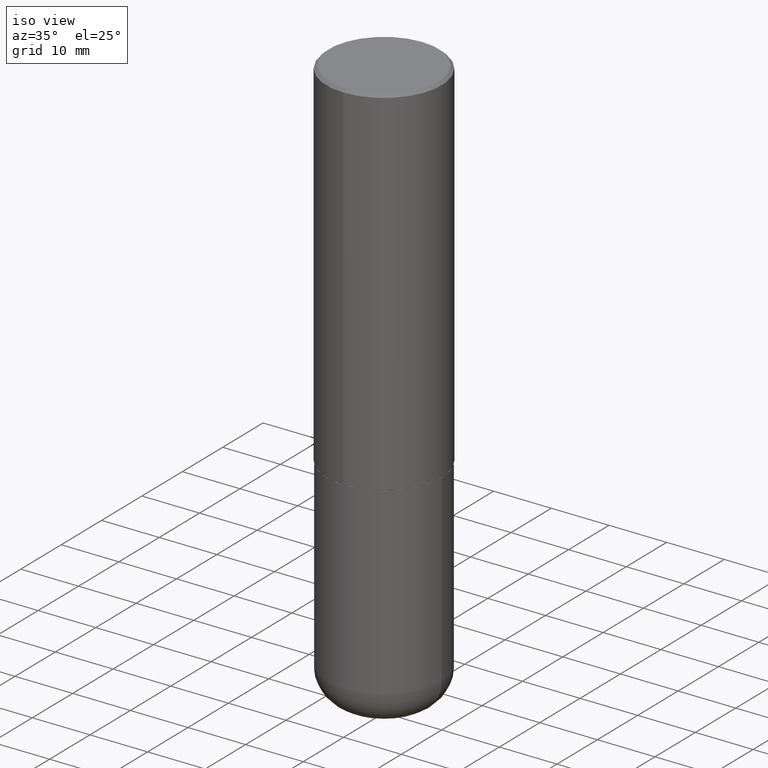
[diagram: clean part render]
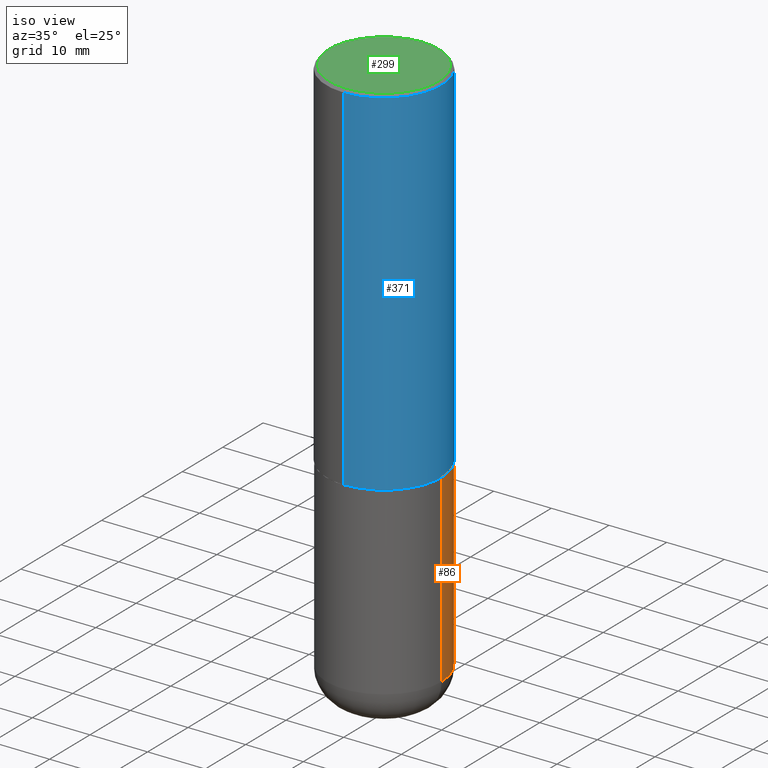
[diagram: same view with three faces highlighted in distinct colors, each labeled with its STEP entity id]
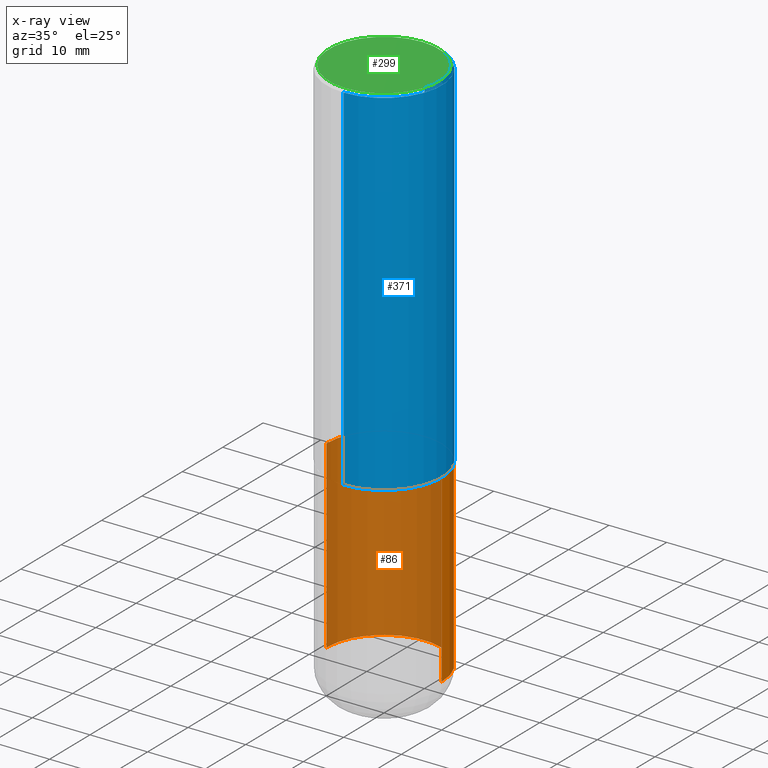
[diagram: x-ray of the same camera — body ghosted, the three highlighted faces saturated]
A machine part, iso view with three faces highlighted in distinct colors.
The next image is the same camera in x-ray (body ghosted, the three faces saturated) — at least one of them is partly hidden behind the body in this view.
Their STEP definitions:

[orange] entity #86 — the highlighted cylindrical surface (partial cylindrical patch) has radius 10 mm, axis along (-0, 0, 1).
#3 = DIRECTION ( 'NONE',  ( 1.000000000000000000, -6.982962677686269866E-15, 0.000000000000000000 ) ) ;
#14 = VECTOR ( 'NONE', #190, 39.37007874015748143 ) ;
#18 = CIRCLE ( 'NONE', #80, 0.3937000000000000499 ) ;
#19 = VECTOR ( 'NONE', #329, 39.37007874015748143 ) ;
#21 = ORIENTED_EDGE ( 'NONE', *, *, #23, .F. ) ;
#23 = EDGE_CURVE ( 'NONE', #380, #294, #18, .T. ) ;
#29 = DIRECTION ( 'NONE',  ( -2.445468806185136597E-29, 3.491481338843145583E-15, 1.000000000000000000 ) ) ;
#50 = CARTESIAN_POINT ( 'NONE',  ( 0.3937000000000000499, -1.127154920618731776E-14, -2.440900000000000070 ) ) ;
#52 = EDGE_LOOP ( 'NONE', ( #333, #336, #21, #409 ) ) ;
#59 = CARTESIAN_POINT ( 'NONE',  ( 0.3936999999999999389, -1.567046654499579837E-14, -3.700800000000000090 ) ) ;
#76 = AXIS2_PLACEMENT_3D ( 'NONE', #289, #147, #282 ) ;
#78 = CARTESIAN_POINT ( 'NONE',  ( -0.3936999999999999389, 2.797406750687513998E-15, -1.936584745033356455E-29 ) ) ;
#80 = AXIS2_PLACEMENT_3D ( 'NONE', #349, #357, #390 ) ;
#86 = ADVANCED_FACE ( 'NONE', ( #287 ), #155, .T. ) ;
#89 = VERTEX_POINT ( 'NONE', #316 ) ;
#95 = CARTESIAN_POINT ( 'NONE',  ( 0.3936999999999999389, -2.749192406205082822E-15, 1.919750796630859611E-29 ) ) ;
#99 = EDGE_CURVE ( 'NONE', #111, #380, #194, .T. ) ;
#111 = VERTEX_POINT ( 'NONE', #59 ) ;
#126 = CARTESIAN_POINT ( 'NONE',  ( 9.050190957929953666E-29, -1.292127413879071357E-14, -3.700800000000000090 ) ) ;
#147 = DIRECTION ( 'NONE',  ( -2.445468806185136597E-29, 3.491481338843145583E-15, 1.000000000000000000 ) ) ;
#155 = CYLINDRICAL_SURFACE ( 'NONE', #76, 0.3936999999999999389 ) ;
#187 = CIRCLE ( 'NONE', #298, 0.3936999999999999389 ) ;
#190 = DIRECTION ( 'NONE',  ( -2.445468806185136877E-29, 3.491481338843145188E-15, 1.000000000000000000 ) ) ;
#194 = LINE ( 'NONE', #95, #14 ) ;
#206 = EDGE_CURVE ( 'NONE', #111, #89, #187, .T. ) ;
#237 = LINE ( 'NONE', #78, #19 ) ;
#259 = CARTESIAN_POINT ( 'NONE',  ( -0.3937000000000000499, -7.924408718698959272E-15, -2.440900000000000070 ) ) ;
#269 = EDGE_CURVE ( 'NONE', #89, #294, #237, .T. ) ;
#282 = DIRECTION ( 'NONE',  ( 1.000000000000000000, -6.982962677686266711E-15, 4.876176775795935793E-29 ) ) ;
#287 = FACE_OUTER_BOUND ( 'NONE', #52, .T. ) ;
#289 = CARTESIAN_POINT ( 'NONE',  ( 0.000000000000000000, 0.000000000000000000, 0.000000000000000000 ) ) ;
#294 = VERTEX_POINT ( 'NONE', #259 ) ;
#298 = AXIS2_PLACEMENT_3D ( 'NONE', #126, #29, #3 ) ;
#316 = CARTESIAN_POINT ( 'NONE',  ( -0.3936999999999999389, -1.012386738810319800E-14, -3.700800000000000090 ) ) ;
#329 = DIRECTION ( 'NONE',  ( -2.445468806185136877E-29, 3.491481338843145188E-15, 1.000000000000000000 ) ) ;
#333 = ORIENTED_EDGE ( 'NONE', *, *, #206, .T. ) ;
#336 = ORIENTED_EDGE ( 'NONE', *, *, #269, .T. ) ;
#349 = CARTESIAN_POINT ( 'NONE',  ( 5.969144809017300159E-29, -8.522356799982234543E-15, -2.440900000000000070 ) ) ;
#357 = DIRECTION ( 'NONE',  ( -2.445468806185136597E-29, 3.491481338843145583E-15, 1.000000000000000000 ) ) ;
#380 = VERTEX_POINT ( 'NONE', #50 ) ;
#390 = DIRECTION ( 'NONE',  ( 1.000000000000000000, -6.982962677686267499E-15, 0.000000000000000000 ) ) ;
#409 = ORIENTED_EDGE ( 'NONE', *, *, #99, .F. ) ;

[blue] entity #371 — the highlighted cylindrical surface (partial cylindrical patch) has radius 10 mm, axis along (-0, 0, 1).
#9 = LINE ( 'NONE', #161, #166 ) ;
#25 = AXIS2_PLACEMENT_3D ( 'NONE', #275, #410, #180 ) ;
#26 = ORIENTED_EDGE ( 'NONE', *, *, #290, .F. ) ;
#30 = DIRECTION ( 'NONE',  ( -2.446922510361644554E-29, 3.489399551722682834E-15, 1.000000000000000000 ) ) ;
#38 = DIRECTION ( 'NONE',  ( -2.446922510361644554E-29, 3.489399551722683229E-15, 1.000000000000000000 ) ) ;
#48 = FACE_OUTER_BOUND ( 'NONE', #372, .T. ) ;
#57 = VERTEX_POINT ( 'NONE', #257 ) ;
#60 = AXIS2_PLACEMENT_3D ( 'NONE', #69, #416, #65 ) ;
#65 = DIRECTION ( 'NONE',  ( -6.982962677686265133E-15, -1.000000000000000000, 3.491137977679279424E-15 ) ) ;
#69 = CARTESIAN_POINT ( 'NONE',  ( 4.893845020723310268E-31, -6.978799103445395153E-17, -0.02000000000000008715 ) ) ;
#75 = CARTESIAN_POINT ( 'NONE',  ( -2.749192406205024841E-15, -0.3937000000000087652, -2.439899999999998847 ) ) ;
#81 = EDGE_CURVE ( 'NONE', #240, #213, #251, .T. ) ;
#97 = CARTESIAN_POINT ( 'NONE',  ( 2.797406750687514786E-15, 0.3937000000000001054, -1.373776603513220668E-15 ) ) ;
#122 = DIRECTION ( 'NONE',  ( -6.982962677686265922E-15, -1.000000000000000000, 3.469453890861393995E-15 ) ) ;
#132 = AXIS2_PLACEMENT_3D ( 'NONE', #189, #30, #122 ) ;
#135 = EDGE_CURVE ( 'NONE', #140, #57, #293, .T. ) ;
#140 = VERTEX_POINT ( 'NONE', #75 ) ;
#161 = CARTESIAN_POINT ( 'NONE',  ( -2.749192406205083217E-15, -0.3937000000000001054, 1.373776603513220668E-15 ) ) ;
#166 = VECTOR ( 'NONE', #224, 39.37007874015748143 ) ;
#180 = DIRECTION ( 'NONE',  ( -6.982962677686265133E-15, -1.000000000000000000, 3.489399551722682834E-15 ) ) ;
#188 = VECTOR ( 'NONE', #38, 39.37007874015748143 ) ;
#189 = CARTESIAN_POINT ( 'NONE',  ( 5.970246233031377205E-29, -8.513785966248174161E-15, -2.439900000000000180 ) ) ;
#210 = CYLINDRICAL_SURFACE ( 'NONE', #25, 0.3937000000000001054 ) ;
#213 = VERTEX_POINT ( 'NONE', #252 ) ;
#224 = DIRECTION ( 'NONE',  ( -2.446922510361644554E-29, 3.489399551722683229E-15, 1.000000000000000000 ) ) ;
#240 = VERTEX_POINT ( 'NONE', #360 ) ;
#251 = CIRCLE ( 'NONE', #60, 0.3937000000000000499 ) ;
#252 = CARTESIAN_POINT ( 'NONE',  ( 2.749192406205083217E-15, 0.3936999999999999389, -0.02000000000000146105 ) ) ;
#257 = CARTESIAN_POINT ( 'NONE',  ( 2.797406750687545158E-15, 0.3936999999999916677, -2.439900000000001512 ) ) ;
#261 = LINE ( 'NONE', #97, #188 ) ;
#275 = CARTESIAN_POINT ( 'NONE',  ( 0.000000000000000000, 0.000000000000000000, 0.000000000000000000 ) ) ;
#277 = ORIENTED_EDGE ( 'NONE', *, *, #81, .F. ) ;
#290 = EDGE_CURVE ( 'NONE', #140, #240, #9, .T. ) ;
#293 = CIRCLE ( 'NONE', #132, 0.3937000000000002164 ) ;
#308 = EDGE_CURVE ( 'NONE', #57, #213, #261, .T. ) ;
#360 = CARTESIAN_POINT ( 'NONE',  ( -2.700978061722651252E-15, -0.3937000000000001054, -0.01999999999999870978 ) ) ;
#370 = ORIENTED_EDGE ( 'NONE', *, *, #135, .T. ) ;
#371 = ADVANCED_FACE ( 'NONE', ( #48 ), #210, .T. ) ;
#372 = EDGE_LOOP ( 'NONE', ( #370, #387, #277, #26 ) ) ;
#387 = ORIENTED_EDGE ( 'NONE', *, *, #308, .T. ) ;
#410 = DIRECTION ( 'NONE',  ( -2.446922510361644554E-29, 3.489399551722682834E-15, 1.000000000000000000 ) ) ;
#416 = DIRECTION ( 'NONE',  ( -2.446922510361644554E-29, 3.489399551722682834E-15, 1.000000000000000000 ) ) ;

[green] entity #299 — the highlighted planar face has unit normal (0, -0, -1).
#7 = VERTEX_POINT ( 'NONE', #385 ) ;
#62 = AXIS2_PLACEMENT_3D ( 'NONE', #273, #110, #176 ) ;
#70 = CIRCLE ( 'NONE', #212, 0.3736999999999999211 ) ;
#110 = DIRECTION ( 'NONE',  ( -2.446922510361644554E-29, 3.489399551722682834E-15, 1.000000000000000000 ) ) ;
#145 = ORIENTED_EDGE ( 'NONE', *, *, #365, .T. ) ;
#163 = CARTESIAN_POINT ( 'NONE',  ( 2.679362779428219918E-15, 0.3736999999999999211, -1.176711201622670637E-15 ) ) ;
#165 = ORIENTED_EDGE ( 'NONE', *, *, #203, .T. ) ;
#171 = EDGE_LOOP ( 'NONE', ( #165, #145 ) ) ;
#176 = DIRECTION ( 'NONE',  ( -6.982962677686265133E-15, -1.000000000000000000, 3.489399551722682440E-15 ) ) ;
#195 = CARTESIAN_POINT ( 'NONE',  ( 2.609533152651356620E-15, 0.3736999999999999211, -1.240349907050718615E-15 ) ) ;
#203 = EDGE_CURVE ( 'NONE', #313, #7, #70, .T. ) ;
#212 = AXIS2_PLACEMENT_3D ( 'NONE', #288, #219, #315 ) ;
#219 = DIRECTION ( 'NONE',  ( -2.446922510361644554E-29, 3.489399551722682834E-15, 1.000000000000000000 ) ) ;
#247 = AXIS2_PLACEMENT_3D ( 'NONE', #195, #358, #392 ) ;
#273 = CARTESIAN_POINT ( 'NONE',  ( -3.114379616843273246E-45, 4.441217403856829071E-31, 1.272774108560953647E-16 ) ) ;
#288 = CARTESIAN_POINT ( 'NONE',  ( -3.114379616843273246E-45, 4.441217403856829071E-31, 1.272774108560953647E-16 ) ) ;
#296 = FACE_OUTER_BOUND ( 'NONE', #171, .T. ) ;
#299 = ADVANCED_FACE ( 'NONE', ( #296 ), #356, .F. ) ;
#306 = CIRCLE ( 'NONE', #62, 0.3736999999999999211 ) ;
#313 = VERTEX_POINT ( 'NONE', #163 ) ;
#315 = DIRECTION ( 'NONE',  ( -6.982962677686265133E-15, -1.000000000000000000, 3.489399551722682440E-15 ) ) ;
#356 = PLANE ( 'NONE',  #247 ) ;
#358 = DIRECTION ( 'NONE',  ( 2.446922510361643994E-29, -3.489399551722683229E-15, -1.000000000000000000 ) ) ;
#365 = EDGE_CURVE ( 'NONE', #7, #313, #306, .T. ) ;
#385 = CARTESIAN_POINT ( 'NONE',  ( -2.632373081744935921E-15, -0.3736999999999999211, 1.431266023334861564E-15 ) ) ;
#392 = DIRECTION ( 'NONE',  ( 6.982962677686265922E-15, 1.000000000000000000, -3.489399551722683229E-15 ) ) ;